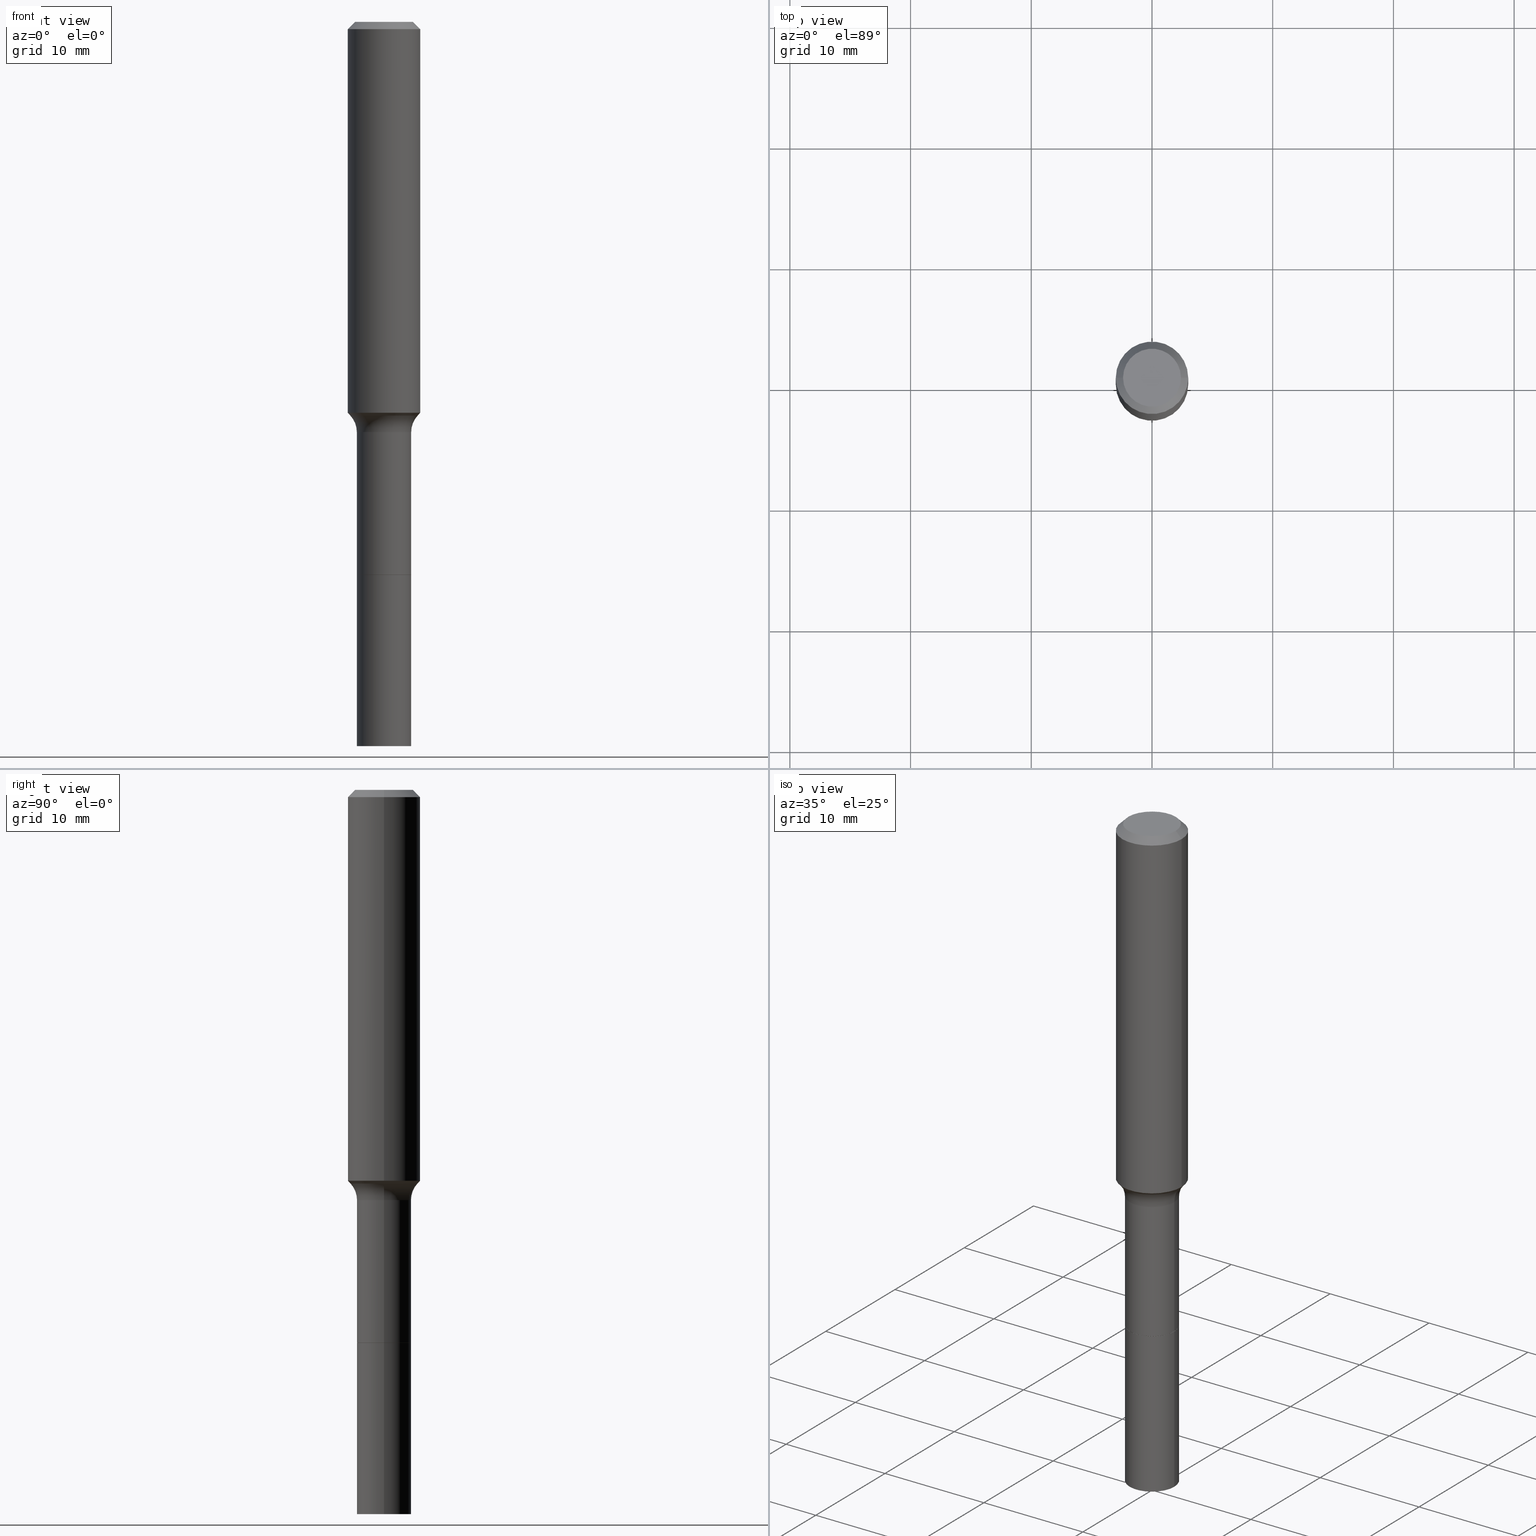
[diagram: canonical four-view strip — front | top / right | iso, engineering-drawing reading convention]
A machine part, canonical four-view strip (front | top / right | iso — engineering-drawing reading convention). The complete STEP part file that produces these views, byte-faithful:
ISO-10303-21;
HEADER;
FILE_DESCRIPTION (( 'STEP AP203' ),
    '1' );
FILE_NAME ('67720.STEP',
    '2025-04-01T15:29:47',
    ( '' ),
    ( '' ),
    'SwSTEP 2.0',
    'SolidWorks 2024',
    '' );
FILE_SCHEMA (( 'CONFIG_CONTROL_DESIGN' ));
ENDSEC;

DATA;
#1 = ORIENTED_EDGE ( 'NONE', *, *, #85, .F. ) ;
#2 = DIRECTION ( 'NONE',  ( -0.6819983600625159070, 7.399397606724354418E-15, 0.7313537016191541396 ) ) ;
#3 = DIRECTION ( 'NONE',  ( -2.445468806185136597E-29, 3.491481338843145583E-15, 1.000000000000000000 ) ) ;
#4 = VECTOR ( 'NONE', #163, 39.37007874015748143 ) ;
#5 = AXIS2_PLACEMENT_3D ( 'NONE', #78, #158, #283 ) ;
#6 = DIRECTION ( 'NONE',  ( -2.445468806185136597E-29, 3.491481338843145583E-15, 1.000000000000000000 ) ) ;
#7 = VERTEX_POINT ( 'NONE', #48 ) ;
#8 = LINE ( 'NONE', #101, #228 ) ;
#9 = FACE_OUTER_BOUND ( 'NONE', #167, .T. ) ;
#10 = DIRECTION ( 'NONE',  ( 1.000000000000000000, -6.982962677686269077E-15, 0.000000000000000000 ) ) ;
#11 = ORIENTED_EDGE ( 'NONE', *, *, #183, .T. ) ;
#12 = CARTESIAN_POINT ( 'NONE',  ( -0.08860000000000010922, -6.642167320525169260E-15, -2.362200000000000077 ) ) ;
#13 = ORIENTED_EDGE ( 'NONE', *, *, #43, .T. ) ;
#14 = CARTESIAN_POINT ( 'NONE',  ( 0.08809999999999999776, -6.911038162106119696E-15, -1.803200000000000136 ) ) ;
#15 = DIRECTION ( 'NONE',  ( -6.982962677686266711E-15, -1.000000000000000000, 3.491481338843145583E-15 ) ) ;
#16 = CARTESIAN_POINT ( 'NONE',  ( 4.409669351313038346E-29, -6.295839150201959750E-15, -1.803200000000000136 ) ) ;
#17 = ORIENTED_EDGE ( 'NONE', *, *, #433, .F. ) ;
#18 = CARTESIAN_POINT ( 'NONE',  ( 5.776686413970529753E-29, -8.247577218615279626E-15, -2.362200000000000077 ) ) ;
#19 = ADVANCED_FACE ( 'NONE', ( #443 ), #323, .T. ) ;
#20 = CARTESIAN_POINT ( 'NONE',  ( -0.1100917038704661705, -3.699556959331390944E-15, -1.283640131194999867 ) ) ;
#21 = VECTOR ( 'NONE', #253, 39.37007874015748143 ) ;
#22 = LOCAL_TIME ( 11, 29, 47.00000000000000000, #36 ) ;
#23 = ORIENTED_EDGE ( 'NONE', *, *, #29, .F. ) ;
#24 = PERSON_AND_ORGANIZATION ( #422, #420 ) ;
#25 = DIRECTION ( 'NONE',  ( 1.000000000000000000, -6.982962677686264344E-15, 0.000000000000000000 ) ) ;
#26 = ADVANCED_FACE ( 'NONE', ( #81 ), #32, .T. ) ;
#27 = PERSON_AND_ORGANIZATION_ROLE ( 'classification_officer' ) ;
#28 = CARTESIAN_POINT ( 'NONE',  ( 4.409669351313038346E-29, -6.295839150201959750E-15, -1.803200000000000136 ) ) ;
#29 = EDGE_CURVE ( 'NONE', #170, #109, #55, .T. ) ;
#30 = PERSON_AND_ORGANIZATION ( #422, #420 ) ;
#31 = CARTESIAN_POINT ( 'NONE',  ( 3.772893820736570314E-46, -5.386692455541008845E-32, -1.542810037565835988E-17 ) ) ;
#32 = CONICAL_SURFACE ( 'NONE', #515, 0.1180999999999999966, 0.7853981633974461696 ) ;
#33 = AXIS2_PLACEMENT_3D ( 'NONE', #194, #303, #106 ) ;
#34 = CIRCLE ( 'NONE', #461, 0.1180999999999999966 ) ;
#35 = EDGE_CURVE ( 'NONE', #7, #500, #34, .T. ) ;
#36 = COORDINATED_UNIVERSAL_TIME_OFFSET ( 5, 0, .BEHIND. ) ;
#37 = DIRECTION ( 'NONE',  ( 7.105427357601001859E-15, 1.000000000000000000, -3.491481338843145583E-15 ) ) ;
#38 = ORIENTED_EDGE ( 'NONE', *, *, #217, .T. ) ;
#39 = APPROVAL ( #149, 'UNSPECIFIED' ) ;
#40 = ORIENTED_EDGE ( 'NONE', *, *, #425, .F. ) ;
#41 = ORIENTED_EDGE ( 'NONE', *, *, #346, .T. ) ;
#42 = VERTEX_POINT ( 'NONE', #485 ) ;
#43 = EDGE_CURVE ( 'NONE', #267, #7, #251, .T. ) ;
#44 = VECTOR ( 'NONE', #382, 39.37007874015748143 ) ;
#45 = ORIENTED_EDGE ( 'NONE', *, *, #225, .F. ) ;
#46 = EDGE_CURVE ( 'NONE', #392, #497, #356, .T. ) ;
#47 = ORIENTED_EDGE ( 'NONE', *, *, #35, .T. ) ;
#48 = CARTESIAN_POINT ( 'NONE',  ( 0.1180999999999999966, -9.071566814582237199E-16, -0.02362000000000014435 ) ) ;
#49 = CIRCLE ( 'NONE', #125, 0.08859999999999994269 ) ;
#50 = DIRECTION ( 'NONE',  ( -2.445468806185136597E-29, 3.491481338843145583E-15, 1.000000000000000000 ) ) ;
#51 = AXIS2_PLACEMENT_3D ( 'NONE', #453, #215, #393 ) ;
#52 = VERTEX_POINT ( 'NONE', #12 ) ;
#53 = DIRECTION ( 'NONE',  ( -2.445468806185136597E-29, 3.491481338843145583E-15, 1.000000000000000000 ) ) ;
#54 = DIRECTION ( 'NONE',  ( -2.445468806185136597E-29, 3.491481338843145583E-15, 1.000000000000000000 ) ) ;
#55 = LINE ( 'NONE', #488, #205 ) ;
#56 = ORIENTED_EDGE ( 'NONE', *, *, #183, .F. ) ;
#57 = VERTEX_POINT ( 'NONE', #131 ) ;
#58 = DIRECTION ( 'NONE',  ( -2.445468806185136597E-29, 3.491481338843145583E-15, 1.000000000000000000 ) ) ;
#59 = ORIENTED_EDGE ( 'NONE', *, *, #417, .T. ) ;
#60 = CC_DESIGN_PERSON_AND_ORGANIZATION_ASSIGNMENT ( #372, #27, ( #118 ) ) ;
#61 = LINE ( 'NONE', #287, #482 ) ;
#62 = DIRECTION ( 'NONE',  ( -2.445468806185136877E-29, 3.491481338843145188E-15, 1.000000000000000000 ) ) ;
#63 = CARTESIAN_POINT ( 'NONE',  ( 5.776686413970529753E-29, -8.247577218615279626E-15, -2.362200000000000077 ) ) ;
#64 = AXIS2_PLACEMENT_3D ( 'NONE', #366, #6, #165 ) ;
#65 = DATE_TIME_ROLE ( 'classification_date' ) ;
#66 = CIRCLE ( 'NONE', #510, 0.09447999999999998066 ) ;
#67 = CARTESIAN_POINT ( 'NONE',  ( 5.776197320209328408E-31, -8.246878922347560526E-17, -0.02362000000000014435 ) ) ;
#68 = COORDINATED_UNIVERSAL_TIME_OFFSET ( 5, 0, .BEHIND. ) ;
#69 = PERSON_AND_ORGANIZATION ( #422, #420 ) ;
#70 = DIRECTION ( 'NONE',  ( -1.000000000000000000, 6.982962677686266711E-15, 0.000000000000000000 ) ) ;
#71 = CONICAL_SURFACE ( 'NONE', #176, 0.1100917038704661705, 0.7504915783575856203 ) ;
#72 = CIRCLE ( 'NONE', #265, 0.08000000000000007105 ) ;
#73 = ADVANCED_FACE ( 'NONE', ( #124 ), #458, .F. ) ;
#74 = DIRECTION ( 'NONE',  ( 1.000000000000000000, -6.982962677686264344E-15, 0.000000000000000000 ) ) ;
#75 = ORIENTED_EDGE ( 'NONE', *, *, #115, .F. ) ;
#76 = ORIENTED_EDGE ( 'NONE', *, *, #503, .T. ) ;
#77 = AXIS2_PLACEMENT_3D ( 'NONE', #28, #336, #509 ) ;
#78 = CARTESIAN_POINT ( 'NONE',  ( 5.776686413970529753E-29, -8.247577218615279626E-15, -2.362200000000000077 ) ) ;
#79 = ORIENTED_EDGE ( 'NONE', *, *, #346, .F. ) ;
#80 = ORIENTED_EDGE ( 'NONE', *, *, #322, .T. ) ;
#81 = FACE_OUTER_BOUND ( 'NONE', #495, .T. ) ;
#82 = DIMENSIONAL_EXPONENTS ( 1.000000000000000000, 0.000000000000000000, 0.000000000000000000, 0.000000000000000000, 0.000000000000000000, 0.000000000000000000, 0.000000000000000000 ) ;
#83 = AXIS2_PLACEMENT_3D ( 'NONE', #63, #175, #220 ) ;
#84 = CARTESIAN_POINT ( 'NONE',  ( 4.409669351313038346E-29, -6.295839150201959750E-15, -1.803200000000000136 ) ) ;
#85 = EDGE_CURVE ( 'NONE', #350, #109, #164, .T. ) ;
#86 = CARTESIAN_POINT ( 'NONE',  ( 3.272526356436949336E-29, -4.672300327639896745E-15, -1.338200000000000056 ) ) ;
#87 = DIRECTION ( 'NONE',  ( 1.000000000000000000, -6.982962677686266711E-15, 4.883557194083112901E-29 ) ) ;
#88 = LINE ( 'NONE', #14, #4 ) ;
#89 = ORIENTED_EDGE ( 'NONE', *, *, #249, .F. ) ;
#90 = EDGE_LOOP ( 'NONE', ( #75, #45 ) ) ;
#91 = DIRECTION ( 'NONE',  ( -2.445468806185136597E-29, 3.491481338843145583E-15, 1.000000000000000000 ) ) ;
#92 = ADVANCED_FACE ( 'NONE', ( #284 ), #288, .T. ) ;
#93 = CARTESIAN_POINT ( 'NONE',  ( 0.1685999999999999444, -5.849627835097801350E-15, -1.338200000000000056 ) ) ;
#94 = CLOSED_SHELL ( 'NONE', ( #442, #166, #302, #73 ) ) ;
#95 = AXIS2_PLACEMENT_3D ( 'NONE', #511, #221, #507 ) ;
#96 = DIRECTION ( 'NONE',  ( 1.000000000000000000, -6.982962677686263555E-15, 0.000000000000000000 ) ) ;
#97 = COORDINATED_UNIVERSAL_TIME_OFFSET ( 5, 0, .BEHIND. ) ;
#98 = EDGE_CURVE ( 'NONE', #241, #170, #308, .T. ) ;
#99 = PERSON_AND_ORGANIZATION_ROLE ( 'design_supplier' ) ;
#100 = CARTESIAN_POINT ( 'NONE',  ( 3.118100589234994033E-29, -4.451821259144535962E-15, -1.275052285005076280 ) ) ;
#101 = CARTESIAN_POINT ( 'NONE',  ( -0.08809999999999999776, -5.669850999997311798E-15, -1.803200000000000136 ) ) ;
#102 = VECTOR ( 'NONE', #473, 39.37007874015748143 ) ;
#103 = PERSON_AND_ORGANIZATION ( #422, #420 ) ;
#104 = CARTESIAN_POINT ( 'NONE',  ( -0.08859999999999994269, -4.853656004702769040E-15, -1.338200000000000056 ) ) ;
#105 = DATE_AND_TIME ( #423, #22 ) ;
#106 = DIRECTION ( 'NONE',  ( 1.000000000000000000, -6.982962677686268288E-15, 0.000000000000000000 ) ) ;
#107 = SECURITY_CLASSIFICATION_LEVEL ( 'unclassified' ) ;
#108 = CARTESIAN_POINT ( 'NONE',  ( -0.1685999999999999444, -3.474325275148368424E-15, -1.338200000000000056 ) ) ;
#109 = VERTEX_POINT ( 'NONE', #122 ) ;
#110 = CONICAL_SURFACE ( 'NONE', #331, 0.08809999999999999776, 0.7853981633975678500 ) ;
#111 = AXIS2_PLACEMENT_3D ( 'NONE', #432, #182, #70 ) ;
#112 = AXIS2_PLACEMENT_3D ( 'NONE', #203, #136, #326 ) ;
#113 = EDGE_LOOP ( 'NONE', ( #278, #481, #513, #477 ) ) ;
#114 = ADVANCED_BREP_SHAPE_REPRESENTATION ( '67720', ( #398, #416, #337 ), #421 ) ;
#115 = EDGE_CURVE ( 'NONE', #237, #316, #317, .T. ) ;
#116 = ORIENTED_EDGE ( 'NONE', *, *, #147, .T. ) ;
#117 = ORIENTED_EDGE ( 'NONE', *, *, #425, .T. ) ;
#118 = SECURITY_CLASSIFICATION ( '', '', #107 ) ;
#119 = DIRECTION ( 'NONE',  ( -1.000000000000000000, 6.982962677686265922E-15, -4.876176775795935793E-29 ) ) ;
#120 = DIRECTION ( 'NONE',  ( 1.000000000000000000, -6.982962677686269077E-15, 0.000000000000000000 ) ) ;
#121 = EDGE_CURVE ( 'NONE', #316, #57, #8, .T. ) ;
#122 = CARTESIAN_POINT ( 'NONE',  ( 0.1181000000000001493, -5.276509151379285802E-15, -1.275052285005076280 ) ) ;
#123 = CC_DESIGN_DATE_AND_TIME_ASSIGNMENT ( #369, #65, ( #118 ) ) ;
#124 = FACE_OUTER_BOUND ( 'NONE', #456, .T. ) ;
#125 = AXIS2_PLACEMENT_3D ( 'NONE', #447, #54, #168 ) ;
#126 = CIRCLE ( 'NONE', #177, 0.08000000000000007105 ) ;
#127 = DIRECTION ( 'NONE',  ( 0.6819983600625159070, -2.208861293262654480E-15, 0.7313537016191541396 ) ) ;
#128 = ADVANCED_FACE ( 'NONE', ( #304 ), #110, .T. ) ;
#129 = VERTEX_POINT ( 'NONE', #415 ) ;
#130 = CARTESIAN_POINT ( 'NONE',  ( 4.409669351313038346E-29, -6.295839150201959750E-15, -1.803200000000000136 ) ) ;
#131 = CARTESIAN_POINT ( 'NONE',  ( -0.08860000000000001208, -4.853656004702768251E-15, -1.802700000000000191 ) ) ;
#132 = EDGE_CURVE ( 'NONE', #198, #493, #141, .T. ) ;
#133 = EDGE_LOOP ( 'NONE', ( #76, #135, #17, #79 ) ) ;
#134 = FACE_OUTER_BOUND ( 'NONE', #269, .T. ) ;
#135 = ORIENTED_EDGE ( 'NONE', *, *, #492, .T. ) ;
#136 = DIRECTION ( 'NONE',  ( -2.445468806185136597E-29, 3.491481338843145583E-15, 1.000000000000000000 ) ) ;
#137 =( NAMED_UNIT ( * ) SI_UNIT ( $, .STERADIAN. ) SOLID_ANGLE_UNIT ( ) );
#138 = CONICAL_SURFACE ( 'NONE', #295, 0.08809999999999999776, 0.7853981633975678500 ) ;
#139 = APPROVAL_PERSON_ORGANIZATION ( #69, #285, #256 ) ;
#140 = AXIS2_PLACEMENT_3D ( 'NONE', #84, #53, #10 ) ;
#141 = LINE ( 'NONE', #255, #394 ) ;
#142 = APPROVAL_ROLE ( '' ) ;
#143 = DIRECTION ( 'NONE',  ( -2.445468806185136597E-29, 3.491481338843145583E-15, 1.000000000000000000 ) ) ;
#144 = APPROVAL ( #414, 'UNSPECIFIED' ) ;
#145 = MECHANICAL_CONTEXT ( 'NONE', #272, 'mechanical' ) ;
#146 = CARTESIAN_POINT ( 'NONE',  ( 0.08809999999999999776, -6.911038162106119696E-15, -1.803200000000000136 ) ) ;
#147 = EDGE_CURVE ( 'NONE', #237, #198, #88, .T. ) ;
#148 = APPROVAL_PERSON_ORGANIZATION ( #505, #39, #142 ) ;
#149 = APPROVAL_STATUS ( 'not_yet_approved' ) ;
#150 = CARTESIAN_POINT ( 'NONE',  ( -0.1100917038704663092, -3.699556959331390155E-15, -1.283640131194999867 ) ) ;
#151 = CC_DESIGN_PERSON_AND_ORGANIZATION_ASSIGNMENT ( #30, #466, ( #448 ) ) ;
#152 = PERSON_AND_ORGANIZATION ( #422, #420 ) ;
#153 = DIRECTION ( 'NONE',  ( 1.000000000000000000, -6.982962677686266711E-15, 0.000000000000000000 ) ) ;
#154 = APPROVAL_DATE_TIME ( #181, #144 ) ;
#155 = DIRECTION ( 'NONE',  ( -1.000000000000000000, 6.982962677686265922E-15, -4.876176775795935793E-29 ) ) ;
#156 = CIRCLE ( 'NONE', #484, 0.08809999999999999776 ) ;
#157 = CC_DESIGN_SECURITY_CLASSIFICATION ( #118, ( #386 ) ) ;
#158 = DIRECTION ( 'NONE',  ( -2.445468806185136597E-29, 3.491481338843145583E-15, 1.000000000000000000 ) ) ;
#159 = CARTESIAN_POINT ( 'NONE',  ( 4.409669351313038346E-29, -6.295839150201959750E-15, -1.803200000000000136 ) ) ;
#160 = ORIENTED_EDGE ( 'NONE', *, *, #180, .T. ) ;
#161 = AXIS2_PLACEMENT_3D ( 'NONE', #279, #50, #357 ) ;
#162 = CARTESIAN_POINT ( 'NONE',  ( -0.08860000000000006759, -5.666298286318510111E-15, -1.803200000000000136 ) ) ;
#163 = DIRECTION ( 'NONE',  ( 0.7071067811866320607, -2.468850131083142557E-15, 0.7071067811864629737 ) ) ;
#164 = CIRCLE ( 'NONE', #377, 0.1181000000000001493 ) ;
#165 = DIRECTION ( 'NONE',  ( 1.000000000000000000, -6.982962677686269866E-15, 0.000000000000000000 ) ) ;
#166 = ADVANCED_FACE ( 'NONE', ( #134 ), #368, .T. ) ;
#167 = EDGE_LOOP ( 'NONE', ( #312, #117, #342, #345 ) ) ;
#168 = DIRECTION ( 'NONE',  ( 1.000000000000000000, -6.982962677686262766E-15, 0.000000000000000000 ) ) ;
#169 = LOCAL_TIME ( 11, 29, 47.00000000000000000, #335 ) ;
#170 = VERTEX_POINT ( 'NONE', #319 ) ;
#171 = ORIENTED_EDGE ( 'NONE', *, *, #428, .T. ) ;
#172 = CARTESIAN_POINT ( 'NONE',  ( 0.000000000000000000, 0.000000000000000000, 0.000000000000000000 ) ) ;
#173 =( NAMED_UNIT ( * ) PLANE_ANGLE_UNIT ( ) SI_UNIT ( $, .RADIAN. ) );
#174 = DIRECTION ( 'NONE',  ( 1.000000000000000000, -6.982962677686264344E-15, 0.000000000000000000 ) ) ;
#175 = DIRECTION ( 'NONE',  ( -2.445468806185136597E-29, 3.491481338843145583E-15, 1.000000000000000000 ) ) ;
#176 = AXIS2_PLACEMENT_3D ( 'NONE', #365, #457, #351 ) ;
#177 = AXIS2_PLACEMENT_3D ( 'NONE', #108, #37, #311 ) ;
#178 = APPLICATION_PROTOCOL_DEFINITION ( 'international standard', 'config_control_design', 1994, #272 ) ;
#179 = CARTESIAN_POINT ( 'NONE',  ( 4.409669351313038346E-29, -6.295839150201959750E-15, -1.803200000000000136 ) ) ;
#180 = EDGE_CURVE ( 'NONE', #129, #267, #353, .T. ) ;
#181 = DATE_AND_TIME ( #226, #378 ) ;
#182 = DIRECTION ( 'NONE',  ( 2.445468806185136597E-29, -3.491481338843145583E-15, -1.000000000000000000 ) ) ;
#183 = EDGE_CURVE ( 'NONE', #129, #500, #61, .T. ) ;
#184 = SHAPE_DEFINITION_REPRESENTATION ( #362, #114 ) ;
#185 = DIRECTION ( 'NONE',  ( -2.445468806185136597E-29, 3.491481338843145583E-15, 1.000000000000000000 ) ) ;
#186 = ADVANCED_FACE ( 'NONE', ( #291 ), #138, .T. ) ;
#187 = AXIS2_PLACEMENT_3D ( 'NONE', #219, #276, #314 ) ;
#188 = CIRCLE ( 'NONE', #489, 0.08859999999999994269 ) ;
#189 = PERSON_AND_ORGANIZATION_ROLE ( 'creator' ) ;
#190 = CARTESIAN_POINT ( 'NONE',  ( -0.08859999999999999820, -6.642167320525170049E-15, -1.803200000000000136 ) ) ;
#191 = AXIS2_PLACEMENT_3D ( 'NONE', #100, #266, #74 ) ;
#192 = ORIENTED_EDGE ( 'NONE', *, *, #209, .T. ) ;
#193 = PERSON_AND_ORGANIZATION_ROLE ( 'creator' ) ;
#194 = CARTESIAN_POINT ( 'NONE',  ( 4.408446616909946105E-29, -6.294093409532539036E-15, -1.802700000000000191 ) ) ;
#195 = ORIENTED_EDGE ( 'NONE', *, *, #217, .F. ) ;
#196 = ADVANCED_FACE ( 'NONE', ( #202 ), #71, .T. ) ;
#197 = ORIENTED_EDGE ( 'NONE', *, *, #46, .F. ) ;
#198 = VERTEX_POINT ( 'NONE', #402 ) ;
#199 = DIRECTION ( 'NONE',  ( -2.445468806185136597E-29, 3.491481338843145583E-15, 1.000000000000000000 ) ) ;
#200 = CC_DESIGN_PERSON_AND_ORGANIZATION_ASSIGNMENT ( #24, #99, ( #386 ) ) ;
#201 = LINE ( 'NONE', #162, #204 ) ;
#202 = FACE_OUTER_BOUND ( 'NONE', #375, .T. ) ;
#203 = CARTESIAN_POINT ( 'NONE',  ( 0.000000000000000000, 0.000000000000000000, 0.000000000000000000 ) ) ;
#204 = VECTOR ( 'NONE', #347, 39.37007874015748143 ) ;
#205 = VECTOR ( 'NONE', #127, 39.37007874015748854 ) ;
#206 = ORIENTED_EDGE ( 'NONE', *, *, #428, .F. ) ;
#207 = DIRECTION ( 'NONE',  ( -2.445468806185136597E-29, 3.491481338843145583E-15, 1.000000000000000000 ) ) ;
#208 = ORIENTED_EDGE ( 'NONE', *, *, #132, .T. ) ;
#209 = EDGE_CURVE ( 'NONE', #57, #198, #343, .T. ) ;
#210 = DIRECTION ( 'NONE',  ( 1.000000000000000000, -6.982962677686266711E-15, 0.000000000000000000 ) ) ;
#211 = DIRECTION ( 'NONE',  ( 2.438088387897960049E-29, -3.491481338843145188E-15, -1.000000000000000000 ) ) ;
#212 = ADVANCED_FACE ( 'NONE', ( #250 ), #502, .T. ) ;
#213 = AXIS2_PLACEMENT_3D ( 'NONE', #487, #494, #87 ) ;
#214 = DESIGN_CONTEXT ( 'detailed design', #236, 'design' ) ;
#215 = DIRECTION ( 'NONE',  ( -2.445468806185136597E-29, 3.491481338843145583E-15, 1.000000000000000000 ) ) ;
#216 = CARTESIAN_POINT ( 'NONE',  ( 4.409669351313038346E-29, -6.295839150201959750E-15, -1.803200000000000136 ) ) ;
#217 = EDGE_CURVE ( 'NONE', #109, #7, #328, .T. ) ;
#218 = APPROVAL_STATUS ( 'not_yet_approved' ) ;
#219 = CARTESIAN_POINT ( 'NONE',  ( 7.545787641473140628E-46, -1.077338491108201769E-31, -3.085620075131671975E-17 ) ) ;
#220 = DIRECTION ( 'NONE',  ( 1.000000000000000000, -6.982962677686258033E-15, 0.000000000000000000 ) ) ;
#221 = DIRECTION ( 'NONE',  ( -2.445468806185136597E-29, 3.491481338843145583E-15, 1.000000000000000000 ) ) ;
#222 = DATE_TIME_ROLE ( 'creation_date' ) ;
#223 = LINE ( 'NONE', #374, #44 ) ;
#224 = ORIENTED_EDGE ( 'NONE', *, *, #209, .F. ) ;
#225 = EDGE_CURVE ( 'NONE', #316, #237, #156, .T. ) ;
#226 = CALENDAR_DATE ( 2025, 1, 4 ) ;
#227 = CARTESIAN_POINT ( 'NONE',  ( -0.08809999999999999776, -5.667201772823201386E-15, -1.803200000000000136 ) ) ;
#228 = VECTOR ( 'NONE', #258, 39.37007874015748143 ) ;
#229 = VECTOR ( 'NONE', #376, 39.37007874015748143 ) ;
#230 = DIRECTION ( 'NONE',  ( 0.000000000000000000, 0.000000000000000000, 1.000000000000000000 ) ) ;
#231 = CARTESIAN_POINT ( 'NONE',  ( 7.545787641473140628E-46, -1.077338491108201769E-31, -3.085620075131671975E-17 ) ) ;
#232 = EDGE_LOOP ( 'NONE', ( #441, #275, #116, #224 ) ) ;
#233 = CARTESIAN_POINT ( 'NONE',  ( -0.1181000000000001493, -3.612670288211856187E-15, -1.275052285005076280 ) ) ;
#234 = ORIENTED_EDGE ( 'NONE', *, *, #363, .T. ) ;
#235 = CC_DESIGN_DATE_AND_TIME_ASSIGNMENT ( #299, #222, ( #403 ) ) ;
#236 = APPLICATION_CONTEXT ( 'configuration controlled 3d designs of mechanical parts and assemblies' ) ;
#237 = VERTEX_POINT ( 'NONE', #146 ) ;
#238 = DIRECTION ( 'NONE',  ( 1.000000000000000000, -6.982962677686269866E-15, 0.000000000000000000 ) ) ;
#239 = CIRCLE ( 'NONE', #396, 0.08859999999999999820 ) ;
#240 = ORIENTED_EDGE ( 'NONE', *, *, #249, .T. ) ;
#241 = VERTEX_POINT ( 'NONE', #150 ) ;
#242 = EDGE_CURVE ( 'NONE', #500, #7, #445, .T. ) ;
#243 = DIRECTION ( 'NONE',  ( 1.000000000000000000, -6.982962677686264344E-15, 0.000000000000000000 ) ) ;
#244 = ORIENTED_EDGE ( 'NONE', *, *, #132, .F. ) ;
#245 = CARTESIAN_POINT ( 'NONE',  ( 3.118100589234994033E-29, -4.451821259144535962E-15, -1.275052285005076280 ) ) ;
#246 = CIRCLE ( 'NONE', #83, 0.08860000000000013698 ) ;
#247 = DIRECTION ( 'NONE',  ( -1.000000000000000000, 6.982962677686265922E-15, -4.876176775795935793E-29 ) ) ;
#248 = DIRECTION ( 'NONE',  ( 2.445468806185136597E-29, -3.491481338843145583E-15, -1.000000000000000000 ) ) ;
#249 = EDGE_CURVE ( 'NONE', #109, #350, #410, .T. ) ;
#250 = FACE_OUTER_BOUND ( 'NONE', #480, .T. ) ;
#251 = LINE ( 'NONE', #352, #281 ) ;
#252 = ORIENTED_EDGE ( 'NONE', *, *, #359, .F. ) ;
#253 = DIRECTION ( 'NONE',  ( -2.445468806185136877E-29, 3.491481338843145188E-15, 1.000000000000000000 ) ) ;
#254 = ADVANCED_FACE ( 'NONE', ( #429 ), #282, .T. ) ;
#255 = CARTESIAN_POINT ( 'NONE',  ( 0.08859999999999998432, -6.186904932430030515E-16, 4.320292623355198064E-30 ) ) ;
#256 = APPROVAL_ROLE ( '' ) ;
#257 = CARTESIAN_POINT ( 'NONE',  ( 0.09447999999999998066, -7.704367267948738690E-16, -3.085620075131172158E-17 ) ) ;
#258 = DIRECTION ( 'NONE',  ( -0.7071067811866320607, 7.493145998870660238E-15, 0.7071067811864629737 ) ) ;
#259 = TOROIDAL_SURFACE ( 'NONE', #483, 0.1685999999999999444, 0.08000000000000007105 ) ;
#260 = COORDINATED_UNIVERSAL_TIME_OFFSET ( 5, 0, .BEHIND. ) ;
#261 = CYLINDRICAL_SURFACE ( 'NONE', #408, 0.08860000000000006759 ) ;
#262 = APPROVAL_DATE_TIME ( #105, #39 ) ;
#263 = CARTESIAN_POINT ( 'NONE',  ( -0.08859999999999998432, 6.295408638834486533E-16, -4.358176489965845566E-30 ) ) ;
#264 = CALENDAR_DATE ( 2025, 1, 4 ) ;
#265 = AXIS2_PLACEMENT_3D ( 'NONE', #93, #15, #498 ) ;
#266 = DIRECTION ( 'NONE',  ( -2.445468806185136597E-29, 3.491481338843145583E-15, 1.000000000000000000 ) ) ;
#267 = VERTEX_POINT ( 'NONE', #257 ) ;
#268 = CARTESIAN_POINT ( 'NONE',  ( 0.08859999999999999820, -6.914529643444963492E-15, -1.803200000000000136 ) ) ;
#269 = EDGE_LOOP ( 'NONE', ( #474, #361 ) ) ;
#270 = ADVANCED_FACE ( 'NONE', ( #467 ), #468, .T. ) ;
#271 = ORIENTED_EDGE ( 'NONE', *, *, #469, .T. ) ;
#272 = APPLICATION_CONTEXT ( 'configuration controlled 3d designs of mechanical parts and assemblies' ) ;
#273 = CIRCLE ( 'NONE', #5, 0.08860000000000013698 ) ;
#274 = ADVANCED_FACE ( 'NONE', ( #465 ), #301, .F. ) ;
#275 = ORIENTED_EDGE ( 'NONE', *, *, #225, .T. ) ;
#276 = DIRECTION ( 'NONE',  ( -2.445468806185136597E-29, 3.491481338843145583E-15, 1.000000000000000000 ) ) ;
#277 = FACE_OUTER_BOUND ( 'NONE', #397, .T. ) ;
#278 = ORIENTED_EDGE ( 'NONE', *, *, #115, .T. ) ;
#279 = CARTESIAN_POINT ( 'NONE',  ( 4.409669351313038346E-29, -6.295839150201959750E-15, -1.803200000000000136 ) ) ;
#280 = DIRECTION ( 'NONE',  ( -2.445468806185136597E-29, 3.491481338843145583E-15, 1.000000000000000000 ) ) ;
#281 = VECTOR ( 'NONE', #360, 39.37007874015748143 ) ;
#282 = CONICAL_SURFACE ( 'NONE', #95, 0.1100917038704661705, 0.7504915783575856203 ) ;
#283 = DIRECTION ( 'NONE',  ( 1.000000000000000000, -6.982962677686258033E-15, 0.000000000000000000 ) ) ;
#284 = FACE_OUTER_BOUND ( 'NONE', #389, .T. ) ;
#285 = APPROVAL ( #218, 'UNSPECIFIED' ) ;
#286 = ORIENTED_EDGE ( 'NONE', *, *, #43, .F. ) ;
#287 = CARTESIAN_POINT ( 'NONE',  ( -0.1180999999999999966, 7.422191030112725094E-16, -0.02362000000000014435 ) ) ;
#288 = CYLINDRICAL_SURFACE ( 'NONE', #51, 0.08859999999999998432 ) ;
#289 = ORIENTED_EDGE ( 'NONE', *, *, #469, .F. ) ;
#290 = ORIENTED_EDGE ( 'NONE', *, *, #508, .T. ) ;
#291 = FACE_OUTER_BOUND ( 'NONE', #113, .T. ) ;
#292 = CARTESIAN_POINT ( 'NONE',  ( 5.776197320209328408E-31, -8.246878922347560526E-17, -0.02362000000000014435 ) ) ;
#293 = DIRECTION ( 'NONE',  ( -2.445468806185136597E-29, 3.491481338843145583E-15, 1.000000000000000000 ) ) ;
#294 = DIRECTION ( 'NONE',  ( -2.445468806185136597E-29, 3.491481338843145583E-15, 1.000000000000000000 ) ) ;
#295 = AXIS2_PLACEMENT_3D ( 'NONE', #390, #58, #174 ) ;
#296 = CC_DESIGN_APPROVAL ( #39, ( #403 ) ) ;
#297 = VERTEX_POINT ( 'NONE', #104 ) ;
#298 = ORIENTED_EDGE ( 'NONE', *, *, #85, .T. ) ;
#299 = DATE_AND_TIME ( #333, #330 ) ;
#300 = FACE_OUTER_BOUND ( 'NONE', #306, .T. ) ;
#301 = PLANE ( 'NONE',  #77 ) ;
#302 = ADVANCED_FACE ( 'NONE', ( #334 ), #261, .T. ) ;
#303 = DIRECTION ( 'NONE',  ( -2.445468806185136597E-29, 3.491481338843145583E-15, 1.000000000000000000 ) ) ;
#304 = FACE_OUTER_BOUND ( 'NONE', #232, .T. ) ;
#305 = CARTESIAN_POINT ( 'NONE',  ( -0.1181000000000000660, 8.391509709326787887E-16, -5.809262341591047287E-30 ) ) ;
#306 = EDGE_LOOP ( 'NONE', ( #160, #80 ) ) ;
#307 = DIRECTION ( 'NONE',  ( -2.445468806185136597E-29, 3.491481338843145583E-15, 1.000000000000000000 ) ) ;
#308 = CIRCLE ( 'NONE', #64, 0.1100917038704661705 ) ;
#309 = CC_DESIGN_APPROVAL ( #285, ( #386 ) ) ;
#310 = CARTESIAN_POINT ( 'NONE',  ( -0.1180999999999999966, -1.427994053251326329E-15, -0.02362000000000014435 ) ) ;
#311 = DIRECTION ( 'NONE',  ( -1.000000000000000000, 7.105427357601005014E-15, 0.000000000000000000 ) ) ;
#312 = ORIENTED_EDGE ( 'NONE', *, *, #98, .F. ) ;
#313 = CC_DESIGN_PERSON_AND_ORGANIZATION_ASSIGNMENT ( #103, #193, ( #403 ) ) ;
#314 = DIRECTION ( 'NONE',  ( 1.000000000000000000, -6.982962677686267499E-15, 4.875432709231658792E-29 ) ) ;
#315 = APPROVAL_PERSON_ORGANIZATION ( #152, #144, #462 ) ;
#316 = VERTEX_POINT ( 'NONE', #227 ) ;
#317 = CIRCLE ( 'NONE', #161, 0.08809999999999999776 ) ;
#318 = CARTESIAN_POINT ( 'NONE',  ( 0.08859999999999994269, -5.290990820882899698E-15, -1.338200000000000056 ) ) ;
#319 = CARTESIAN_POINT ( 'NONE',  ( 0.1100917038704663092, -5.250571823107863583E-15, -1.283640131194999867 ) ) ;
#320 = CARTESIAN_POINT ( 'NONE',  ( 4.409669351313038346E-29, -6.295839150201959750E-15, -1.803200000000000136 ) ) ;
#321 = CARTESIAN_POINT ( 'NONE',  ( 5.776197320209328408E-31, -8.246878922347560526E-17, -0.02362000000000014435 ) ) ;
#322 = EDGE_CURVE ( 'NONE', #267, #129, #66, .T. ) ;
#323 = CYLINDRICAL_SURFACE ( 'NONE', #112, 0.1181000000000000660 ) ;
#324 = ORIENTED_EDGE ( 'NONE', *, *, #433, .T. ) ;
#325 = LOCAL_TIME ( 11, 29, 47.00000000000000000, #260 ) ;
#326 = DIRECTION ( 'NONE',  ( 1.000000000000000000, -6.982962677686266711E-15, 4.876176775795936353E-29 ) ) ;
#327 = ADVANCED_FACE ( 'NONE', ( #300 ), #424, .F. ) ;
#328 = LINE ( 'NONE', #499, #21 ) ;
#329 = DIRECTION ( 'NONE',  ( -2.445468806185136597E-29, 3.491481338843145583E-15, 1.000000000000000000 ) ) ;
#330 = LOCAL_TIME ( 11, 29, 47.00000000000000000, #68 ) ;
#331 = AXIS2_PLACEMENT_3D ( 'NONE', #130, #294, #243 ) ;
#332 = CARTESIAN_POINT ( 'NONE',  ( 0.000000000000000000, 0.000000000000000000, 0.000000000000000000 ) ) ;
#333 = CALENDAR_DATE ( 2025, 1, 4 ) ;
#334 = FACE_OUTER_BOUND ( 'NONE', #391, .T. ) ;
#335 = COORDINATED_UNIVERSAL_TIME_OFFSET ( 5, 0, .BEHIND. ) ;
#336 = DIRECTION ( 'NONE',  ( -2.438088387897960049E-29, 3.491481338843145188E-15, 1.000000000000000000 ) ) ;
#337 = AXIS2_PLACEMENT_3D ( 'NONE', #332, #230, #426 ) ;
#338 = AXIS2_PLACEMENT_3D ( 'NONE', #67, #475, #153 ) ;
#339 = LINE ( 'NONE', #305, #102 ) ;
#340 = PRODUCT_RELATED_PRODUCT_CATEGORY ( 'detail', '', ( #448 ) ) ;
#341 = DIRECTION ( 'NONE',  ( 2.438088387897960049E-29, -3.491481338843145188E-15, -1.000000000000000000 ) ) ;
#342 = ORIENTED_EDGE ( 'NONE', *, *, #359, .T. ) ;
#343 = CIRCLE ( 'NONE', #430, 0.08860000000000001208 ) ;
#344 = CIRCLE ( 'NONE', #33, 0.08860000000000001208 ) ;
#345 = ORIENTED_EDGE ( 'NONE', *, *, #508, .F. ) ;
#346 = EDGE_CURVE ( 'NONE', #42, #497, #223, .T. ) ;
#347 = DIRECTION ( 'NONE',  ( -2.445468806185136877E-29, 3.491481338843145188E-15, 1.000000000000000000 ) ) ;
#348 = CARTESIAN_POINT ( 'NONE',  ( 3.139101899204768444E-29, -4.481805563857509473E-15, -1.283640131194999867 ) ) ;
#349 = DIRECTION ( 'NONE',  ( -2.445468806185136597E-29, 3.491481338843145583E-15, 1.000000000000000000 ) ) ;
#350 = VERTEX_POINT ( 'NONE', #233 ) ;
#351 = DIRECTION ( 'NONE',  ( 1.000000000000000000, -6.982962677686269866E-15, 0.000000000000000000 ) ) ;
#352 = CARTESIAN_POINT ( 'NONE',  ( 0.1180999999999999966, -8.926936027602933910E-16, -0.02362000000000014435 ) ) ;
#353 = CIRCLE ( 'NONE', #187, 0.09447999999999998066 ) ;
#354 = AXIS2_PLACEMENT_3D ( 'NONE', #16, #293, #96 ) ;
#355 = ORIENTED_EDGE ( 'NONE', *, *, #322, .F. ) ;
#356 = CIRCLE ( 'NONE', #140, 0.08859999999999999820 ) ;
#357 = DIRECTION ( 'NONE',  ( 1.000000000000000000, -6.982962677686264344E-15, 0.000000000000000000 ) ) ;
#358 = CYLINDRICAL_SURFACE ( 'NONE', #501, 0.1181000000000000660 ) ;
#359 = EDGE_CURVE ( 'NONE', #297, #493, #188, .T. ) ;
#360 = DIRECTION ( 'NONE',  ( 0.7071067811865460184, -7.319954787623251312E-15, -0.7071067811865490160 ) ) ;
#361 = ORIENTED_EDGE ( 'NONE', *, *, #514, .F. ) ;
#362 = PRODUCT_DEFINITION_SHAPE ( 'NONE', 'NONE',  #403 ) ;
#363 = EDGE_CURVE ( 'NONE', #198, #57, #344, .T. ) ;
#364 = CIRCLE ( 'NONE', #459, 0.1100917038704661705 ) ;
#365 = CARTESIAN_POINT ( 'NONE',  ( 3.139101899204768444E-29, -4.481805563857509473E-15, -1.283640131194999867 ) ) ;
#366 = CARTESIAN_POINT ( 'NONE',  ( 3.139101899204768444E-29, -4.481805563857509473E-15, -1.283640131194999867 ) ) ;
#367 = CYLINDRICAL_SURFACE ( 'NONE', #354, 0.08860000000000006759 ) ;
#368 = PLANE ( 'NONE',  #405 ) ;
#369 = DATE_AND_TIME ( #418, #169 ) ;
#370 = AXIS2_PLACEMENT_3D ( 'NONE', #172, #91, #409 ) ;
#371 = CC_DESIGN_APPROVAL ( #144, ( #118 ) ) ;
#372 = PERSON_AND_ORGANIZATION ( #422, #420 ) ;
#373 = EDGE_CURVE ( 'NONE', #57, #297, #427, .T. ) ;
#374 = CARTESIAN_POINT ( 'NONE',  ( 0.08860000000000006759, -6.914529643444963492E-15, -1.803200000000000136 ) ) ;
#375 = EDGE_LOOP ( 'NONE', ( #289, #450, #387, #1 ) ) ;
#376 = DIRECTION ( 'NONE',  ( -2.445468806185136877E-29, 3.491481338843145188E-15, 1.000000000000000000 ) ) ;
#377 = AXIS2_PLACEMENT_3D ( 'NONE', #245, #280, #404 ) ;
#378 = LOCAL_TIME ( 11, 29, 47.00000000000000000, #97 ) ;
#379 = CC_DESIGN_PERSON_AND_ORGANIZATION_ASSIGNMENT ( #472, #189, ( #386 ) ) ;
#380 = CLOSED_SHELL ( 'NONE', ( #186, #270, #449, #254, #517, #212, #92, #435, #196, #19, #26, #327, #274, #128 ) ) ;
#381 = DATE_AND_TIME ( #264, #325 ) ;
#382 = DIRECTION ( 'NONE',  ( -2.445468806185136877E-29, 3.491481338843145188E-15, 1.000000000000000000 ) ) ;
#383 = DIRECTION ( 'NONE',  ( 1.000000000000000000, -6.982962677686262766E-15, 0.000000000000000000 ) ) ;
#384 = EDGE_LOOP ( 'NONE', ( #240, #59, #516, #195 ) ) ;
#385 = ORIENTED_EDGE ( 'NONE', *, *, #242, .T. ) ;
#386 = PRODUCT_DEFINITION_FORMATION_WITH_SPECIFIED_SOURCE ( 'ANY', '', #448, .NOT_KNOWN. ) ;
#387 = ORIENTED_EDGE ( 'NONE', *, *, #29, .T. ) ;
#388 = ORIENTED_EDGE ( 'NONE', *, *, #373, .T. ) ;
#389 = EDGE_LOOP ( 'NONE', ( #412, #192, #208, #252 ) ) ;
#390 = CARTESIAN_POINT ( 'NONE',  ( 4.409669351313038346E-29, -6.295839150201959750E-15, -1.803200000000000136 ) ) ;
#391 = EDGE_LOOP ( 'NONE', ( #434, #491, #41, #197 ) ) ;
#392 = VERTEX_POINT ( 'NONE', #190 ) ;
#393 = DIRECTION ( 'NONE',  ( 1.000000000000000000, -6.982962677686265922E-15, 4.876176775795935232E-29 ) ) ;
#394 = VECTOR ( 'NONE', #62, 39.37007874015748143 ) ;
#395 = CARTESIAN_POINT ( 'NONE',  ( 0.000000000000000000, 0.000000000000000000, 0.000000000000000000 ) ) ;
#396 = AXIS2_PLACEMENT_3D ( 'NONE', #159, #349, #120 ) ;
#397 = EDGE_LOOP ( 'NONE', ( #40, #206, #290, #439 ) ) ;
#398 = MANIFOLD_SOLID_BREP ( 'Body-Move/Copy2[1]', #94 ) ;
#399 = DIRECTION ( 'NONE',  ( -1.000000000000000000, 6.982962677686266711E-15, 0.000000000000000000 ) ) ;
#400 = DIRECTION ( 'NONE',  ( -2.445468806185136597E-29, 3.491481338843145583E-15, 1.000000000000000000 ) ) ;
#401 = LENGTH_MEASURE_WITH_UNIT ( LENGTH_MEASURE( 0.02539999999999999897 ), #407 );
#402 = CARTESIAN_POINT ( 'NONE',  ( 0.08860000000000001208, -6.912783902775541989E-15, -1.802700000000000191 ) ) ;
#403 = PRODUCT_DEFINITION ( 'UNKNOWN', '', #386, #214 ) ;
#404 = DIRECTION ( 'NONE',  ( 1.000000000000000000, -6.982962677686264344E-15, 0.000000000000000000 ) ) ;
#405 = AXIS2_PLACEMENT_3D ( 'NONE', #18, #211, #119 ) ;
#406 = ORIENTED_EDGE ( 'NONE', *, *, #417, .F. ) ;
#407 =( LENGTH_UNIT ( ) NAMED_UNIT ( * ) SI_UNIT ( $, .METRE. ) );
#408 = AXIS2_PLACEMENT_3D ( 'NONE', #179, #143, #506 ) ;
#409 = DIRECTION ( 'NONE',  ( 1.000000000000000000, -6.982962677686265922E-15, 4.876176775795935232E-29 ) ) ;
#410 = CIRCLE ( 'NONE', #191, 0.1181000000000001493 ) ;
#411 = FACE_OUTER_BOUND ( 'NONE', #384, .T. ) ;
#412 = ORIENTED_EDGE ( 'NONE', *, *, #373, .F. ) ;
#413 =( CONVERSION_BASED_UNIT ( 'INCH', #401 ) LENGTH_UNIT ( ) NAMED_UNIT ( #82 ) );
#414 = APPROVAL_STATUS ( 'not_yet_approved' ) ;
#415 = CARTESIAN_POINT ( 'NONE',  ( -0.09447999999999998066, 7.009847083995354710E-16, -3.085620075132147757E-17 ) ) ;
#416 = MANIFOLD_SOLID_BREP ( 'Body-Move/Copy2[2]', #380 ) ;
#417 = EDGE_CURVE ( 'NONE', #350, #500, #339, .T. ) ;
#418 = CALENDAR_DATE ( 2025, 1, 4 ) ;
#419 = DIRECTION ( 'NONE',  ( 1.000000000000000000, -6.982962677686267499E-15, 4.875432709231658792E-29 ) ) ;
#420 = ORGANIZATION ( 'UNSPECIFIED', 'UNSPECIFIED', '' ) ;
#421 =( GEOMETRIC_REPRESENTATION_CONTEXT ( 3 ) GLOBAL_UNCERTAINTY_ASSIGNED_CONTEXT ( ( #437 ) ) GLOBAL_UNIT_ASSIGNED_CONTEXT ( ( #413, #173, #137 ) ) REPRESENTATION_CONTEXT ( 'NONE', 'WORKASPACE' ) );
#422 = PERSON ( 'UNSPECIFIED', 'UNSPECIFIED', 'UNSPECIFIED', ('UNSPECIFIED'), ('UNSPECIFIED'), ('UNSPECIFIED') ) ;
#423 = CALENDAR_DATE ( 2025, 1, 4 ) ;
#424 = PLANE ( 'NONE',  #438 ) ;
#425 = EDGE_CURVE ( 'NONE', #241, #297, #126, .T. ) ;
#426 = DIRECTION ( 'NONE',  ( 1.000000000000000000, 0.000000000000000000, 0.000000000000000000 ) ) ;
#427 = LINE ( 'NONE', #263, #229 ) ;
#428 = EDGE_CURVE ( 'NONE', #170, #241, #364, .T. ) ;
#429 = FACE_OUTER_BOUND ( 'NONE', #486, .T. ) ;
#430 = AXIS2_PLACEMENT_3D ( 'NONE', #460, #3, #452 ) ;
#431 = AXIS2_PLACEMENT_3D ( 'NONE', #320, #444, #247 ) ;
#432 = CARTESIAN_POINT ( 'NONE',  ( 5.776197320209328408E-31, -8.246878922347560526E-17, -0.02362000000000014435 ) ) ;
#433 = EDGE_CURVE ( 'NONE', #497, #392, #239, .T. ) ;
#434 = ORIENTED_EDGE ( 'NONE', *, *, #492, .F. ) ;
#435 = ADVANCED_FACE ( 'NONE', ( #277 ), #446, .F. ) ;
#436 = ORIENTED_EDGE ( 'NONE', *, *, #242, .F. ) ;
#437 = UNCERTAINTY_MEASURE_WITH_UNIT (LENGTH_MEASURE( 1.000000000000000082E-05 ), #413, 'distance_accuracy_value', 'NONE');
#438 = AXIS2_PLACEMENT_3D ( 'NONE', #31, #341, #155 ) ;
#439 = ORIENTED_EDGE ( 'NONE', *, *, #518, .T. ) ;
#440 = DIRECTION ( 'NONE',  ( -0.7071067811865460184, 2.468850131082241283E-15, -0.7071067811865490160 ) ) ;
#441 = ORIENTED_EDGE ( 'NONE', *, *, #121, .F. ) ;
#442 = ADVANCED_FACE ( 'NONE', ( #455 ), #367, .T. ) ;
#443 = FACE_OUTER_BOUND ( 'NONE', #463, .T. ) ;
#444 = DIRECTION ( 'NONE',  ( 2.438088387897960049E-29, -3.491481338843145188E-15, -1.000000000000000000 ) ) ;
#445 = CIRCLE ( 'NONE', #338, 0.1180999999999999966 ) ;
#446 = TOROIDAL_SURFACE ( 'NONE', #213, 0.1685999999999999444, 0.08000000000000007105 ) ;
#447 = CARTESIAN_POINT ( 'NONE',  ( 3.272526356436949336E-29, -4.672300327639896745E-15, -1.338200000000000056 ) ) ;
#448 = PRODUCT ( '67720', '67720', '', ( #145 ) ) ;
#449 = ADVANCED_FACE ( 'NONE', ( #411 ), #358, .T. ) ;
#450 = ORIENTED_EDGE ( 'NONE', *, *, #98, .T. ) ;
#451 = DIRECTION ( 'NONE',  ( 1.000000000000000000, -6.982962677686266711E-15, 4.883557194083112901E-29 ) ) ;
#452 = DIRECTION ( 'NONE',  ( 1.000000000000000000, -6.982962677686268288E-15, 0.000000000000000000 ) ) ;
#453 = CARTESIAN_POINT ( 'NONE',  ( 0.000000000000000000, 0.000000000000000000, 0.000000000000000000 ) ) ;
#454 = DIRECTION ( 'NONE',  ( 1.000000000000000000, -6.982962677686266711E-15, 4.876176775795936353E-29 ) ) ;
#455 = FACE_OUTER_BOUND ( 'NONE', #133, .T. ) ;
#456 = EDGE_LOOP ( 'NONE', ( #324, #490 ) ) ;
#457 = DIRECTION ( 'NONE',  ( -2.445468806185136597E-29, 3.491481338843145583E-15, 1.000000000000000000 ) ) ;
#458 = PLANE ( 'NONE',  #431 ) ;
#459 = AXIS2_PLACEMENT_3D ( 'NONE', #348, #199, #238 ) ;
#460 = CARTESIAN_POINT ( 'NONE',  ( 4.408446616909946105E-29, -6.294093409532539036E-15, -1.802700000000000191 ) ) ;
#461 = AXIS2_PLACEMENT_3D ( 'NONE', #292, #207, #210 ) ;
#462 = APPROVAL_ROLE ( '' ) ;
#463 = EDGE_LOOP ( 'NONE', ( #406, #298, #38, #436 ) ) ;
#464 = APPROVAL_DATE_TIME ( #381, #285 ) ;
#465 = FACE_OUTER_BOUND ( 'NONE', #90, .T. ) ;
#466 = PERSON_AND_ORGANIZATION_ROLE ( 'design_owner' ) ;
#467 = FACE_OUTER_BOUND ( 'NONE', #478, .T. ) ;
#468 = CONICAL_SURFACE ( 'NONE', #111, 0.1180999999999999966, 0.7853981633974461696 ) ;
#469 = EDGE_CURVE ( 'NONE', #241, #350, #471, .T. ) ;
#470 = APPLICATION_PROTOCOL_DEFINITION ( 'international standard', 'config_control_design', 1994, #236 ) ;
#471 = LINE ( 'NONE', #20, #476 ) ;
#472 = PERSON_AND_ORGANIZATION ( #422, #420 ) ;
#473 = DIRECTION ( 'NONE',  ( -2.445468806185136877E-29, 3.491481338843145188E-15, 1.000000000000000000 ) ) ;
#474 = ORIENTED_EDGE ( 'NONE', *, *, #503, .F. ) ;
#475 = DIRECTION ( 'NONE',  ( -2.445468806185136597E-29, 3.491481338843145583E-15, 1.000000000000000000 ) ) ;
#476 = VECTOR ( 'NONE', #2, 39.37007874015748854 ) ;
#477 = ORIENTED_EDGE ( 'NONE', *, *, #147, .F. ) ;
#478 = EDGE_LOOP ( 'NONE', ( #355, #13, #47, #56 ) ) ;
#479 = ORIENTED_EDGE ( 'NONE', *, *, #180, .F. ) ;
#480 = EDGE_LOOP ( 'NONE', ( #234, #388, #504, #244 ) ) ;
#481 = ORIENTED_EDGE ( 'NONE', *, *, #121, .T. ) ;
#482 = VECTOR ( 'NONE', #440, 39.37007874015748143 ) ;
#483 = AXIS2_PLACEMENT_3D ( 'NONE', #86, #496, #451 ) ;
#484 = AXIS2_PLACEMENT_3D ( 'NONE', #216, #329, #25 ) ;
#485 = CARTESIAN_POINT ( 'NONE',  ( 0.08860000000000013698, -8.866267711858282579E-15, -2.362200000000000077 ) ) ;
#486 = EDGE_LOOP ( 'NONE', ( #171, #271, #89, #23 ) ) ;
#487 = CARTESIAN_POINT ( 'NONE',  ( 3.272526356436949336E-29, -4.672300327639896745E-15, -1.338200000000000056 ) ) ;
#488 = CARTESIAN_POINT ( 'NONE',  ( 0.1100917038704661705, -5.250571823107863583E-15, -1.283640131194999867 ) ) ;
#489 = AXIS2_PLACEMENT_3D ( 'NONE', #512, #185, #383 ) ;
#490 = ORIENTED_EDGE ( 'NONE', *, *, #46, .T. ) ;
#491 = ORIENTED_EDGE ( 'NONE', *, *, #514, .T. ) ;
#492 = EDGE_CURVE ( 'NONE', #52, #392, #201, .T. ) ;
#493 = VERTEX_POINT ( 'NONE', #318 ) ;
#494 = DIRECTION ( 'NONE',  ( -2.445468806185136597E-29, 3.491481338843145583E-15, 1.000000000000000000 ) ) ;
#495 = EDGE_LOOP ( 'NONE', ( #286, #479, #11, #385 ) ) ;
#496 = DIRECTION ( 'NONE',  ( -2.445468806185136597E-29, 3.491481338843145583E-15, 1.000000000000000000 ) ) ;
#497 = VERTEX_POINT ( 'NONE', #268 ) ;
#498 = DIRECTION ( 'NONE',  ( 1.000000000000000000, -6.982962677686265922E-15, 0.000000000000000000 ) ) ;
#499 = CARTESIAN_POINT ( 'NONE',  ( 0.1181000000000000660, -8.246878922347485584E-16, 5.758764772215003944E-30 ) ) ;
#500 = VERTEX_POINT ( 'NONE', #310 ) ;
#501 = AXIS2_PLACEMENT_3D ( 'NONE', #395, #400, #454 ) ;
#502 = CYLINDRICAL_SURFACE ( 'NONE', #370, 0.08859999999999998432 ) ;
#503 = EDGE_CURVE ( 'NONE', #42, #52, #273, .T. ) ;
#504 = ORIENTED_EDGE ( 'NONE', *, *, #518, .F. ) ;
#505 = PERSON_AND_ORGANIZATION ( #422, #420 ) ;
#506 = DIRECTION ( 'NONE',  ( 1.000000000000000000, -6.982962677686263555E-15, 0.000000000000000000 ) ) ;
#507 = DIRECTION ( 'NONE',  ( 1.000000000000000000, -6.982962677686269866E-15, 0.000000000000000000 ) ) ;
#508 = EDGE_CURVE ( 'NONE', #170, #493, #72, .T. ) ;
#509 = DIRECTION ( 'NONE',  ( 1.000000000000000000, -6.982962677686265922E-15, 4.876176775795935793E-29 ) ) ;
#510 = AXIS2_PLACEMENT_3D ( 'NONE', #231, #307, #419 ) ;
#511 = CARTESIAN_POINT ( 'NONE',  ( 3.139101899204768444E-29, -4.481805563857509473E-15, -1.283640131194999867 ) ) ;
#512 = CARTESIAN_POINT ( 'NONE',  ( 3.272526356436949336E-29, -4.672300327639896745E-15, -1.338200000000000056 ) ) ;
#513 = ORIENTED_EDGE ( 'NONE', *, *, #363, .F. ) ;
#514 = EDGE_CURVE ( 'NONE', #52, #42, #246, .T. ) ;
#515 = AXIS2_PLACEMENT_3D ( 'NONE', #321, #248, #399 ) ;
#516 = ORIENTED_EDGE ( 'NONE', *, *, #35, .F. ) ;
#517 = ADVANCED_FACE ( 'NONE', ( #9 ), #259, .F. ) ;
#518 = EDGE_CURVE ( 'NONE', #493, #297, #49, .T. ) ;
ENDSEC;
END-ISO-10303-21;
